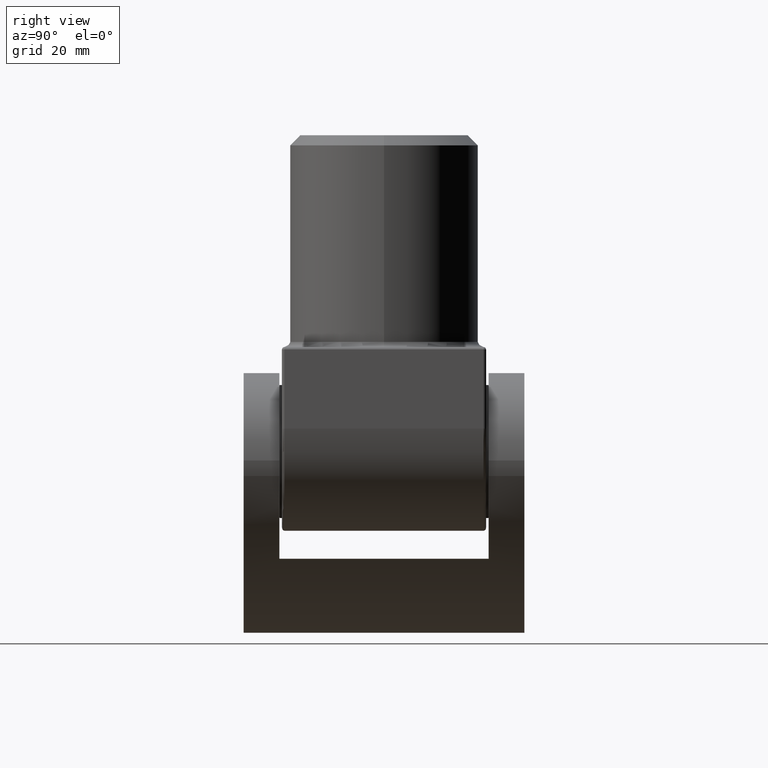
[diagram: clean part render]
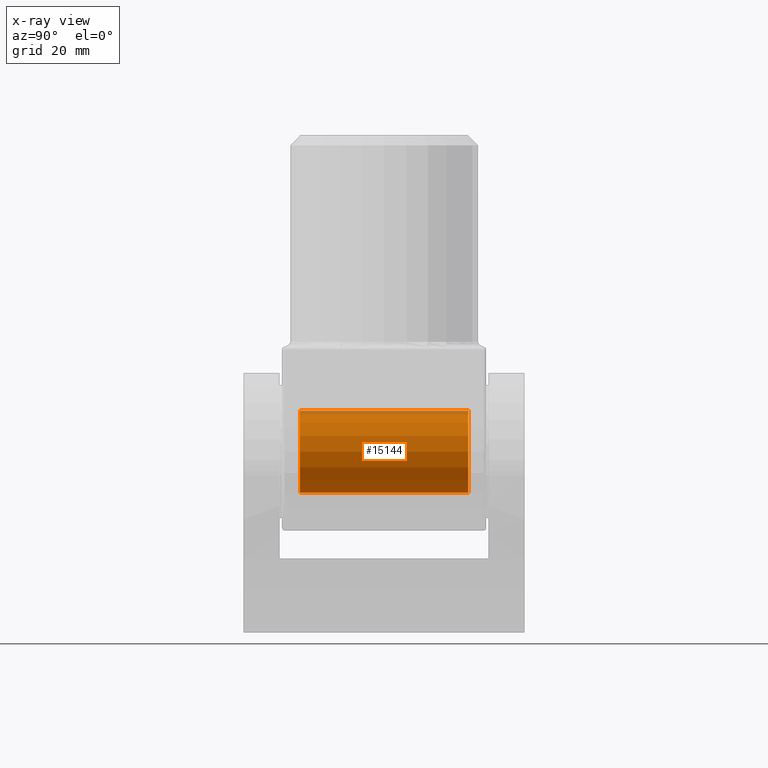
[diagram: x-ray — body ghosted, one internal face saturated and labeled with its STEP entity id]
A machine part, right view, then the same camera in x-ray: the body is ghosted and one INTERNAL B-rep face — a face not visible from any outside direction — is saturated and labeled: STEP entity #15144.
In plain terms, the highlighted cylindrical surface (partial cylindrical patch) has radius 8 mm, axis along (-0, -1, -0).
Its self-contained STEP definition (entity closure, byte-faithful):
#126 = CIRCLE ( 'NONE', #4791, 8.000000000000000000 ) ;
#617 = EDGE_CURVE ( 'NONE', #20256, #3035, #11719, .T. ) ;
#1093 = DIRECTION ( 'NONE',  ( 0.000000000000000000, 0.000000000000000000, -1.000000000000000000 ) ) ;
#1949 = DIRECTION ( 'NONE',  ( 0.000000000000000000, 0.000000000000000000, -1.000000000000000000 ) ) ;
#3035 = VERTEX_POINT ( 'NONE', #19538 ) ;
#3163 = EDGE_LOOP ( 'NONE', ( #11549, #15423, #16409, #3598 ) ) ;
#3598 = ORIENTED_EDGE ( 'NONE', *, *, #617, .F. ) ;
#4352 = CARTESIAN_POINT ( 'NONE',  ( 0.000000000000000000, 16.50000000000000000, -8.000000000000000000 ) ) ;
#4480 = CYLINDRICAL_SURFACE ( 'NONE', #9715, 8.000000000000001776 ) ;
#4791 = AXIS2_PLACEMENT_3D ( 'NONE', #20689, #18682, #1093 ) ;
#4800 = FACE_OUTER_BOUND ( 'NONE', #3163, .T. ) ;
#5022 = DIRECTION ( 'NONE',  ( -0.000000000000000000, -1.000000000000000000, -0.000000000000000000 ) ) ;
#5030 = DIRECTION ( 'NONE',  ( -0.000000000000000000, -1.000000000000000000, -0.000000000000000000 ) ) ;
#5701 = DIRECTION ( 'NONE',  ( -0.000000000000000000, -1.000000000000000000, -0.000000000000000000 ) ) ;
#6836 = EDGE_CURVE ( 'NONE', #11589, #24358, #12871, .T. ) ;
#7112 = EDGE_CURVE ( 'NONE', #20256, #11589, #11667, .T. ) ;
#8349 = VECTOR ( 'NONE', #5022, 1000.000000000000000 ) ;
#9302 = AXIS2_PLACEMENT_3D ( 'NONE', #13540, #5701, #1949 ) ;
#9715 = AXIS2_PLACEMENT_3D ( 'NONE', #22521, #11109, #11024 ) ;
#11024 = DIRECTION ( 'NONE',  ( 0.000000000000000000, 0.000000000000000000, -1.000000000000000000 ) ) ;
#11109 = DIRECTION ( 'NONE',  ( -0.000000000000000000, -1.000000000000000000, -0.000000000000000000 ) ) ;
#11366 = CARTESIAN_POINT ( 'NONE',  ( 9.797174393178827630E-16, 16.50000000000000000, 8.000000000000000000 ) ) ;
#11549 = ORIENTED_EDGE ( 'NONE', *, *, #7112, .T. ) ;
#11589 = VERTEX_POINT ( 'NONE', #11366 ) ;
#11667 = CIRCLE ( 'NONE', #9302, 8.000000000000000000 ) ;
#11719 = LINE ( 'NONE', #12948, #14137 ) ;
#12871 = LINE ( 'NONE', #20461, #8349 ) ;
#12948 = CARTESIAN_POINT ( 'NONE',  ( 0.000000000000000000, 0.000000000000000000, -8.000000000000001776 ) ) ;
#13540 = CARTESIAN_POINT ( 'NONE',  ( 0.000000000000000000, 16.50000000000000000, 0.000000000000000000 ) ) ;
#14137 = VECTOR ( 'NONE', #5030, 1000.000000000000000 ) ;
#14835 = CARTESIAN_POINT ( 'NONE',  ( 9.797174393178827630E-16, -16.50000000000000000, 8.000000000000000000 ) ) ;
#15144 = ADVANCED_FACE ( 'NONE', ( #4800 ), #4480, .T. ) ;
#15423 = ORIENTED_EDGE ( 'NONE', *, *, #6836, .T. ) ;
#16409 = ORIENTED_EDGE ( 'NONE', *, *, #23755, .F. ) ;
#18682 = DIRECTION ( 'NONE',  ( 0.000000000000000000, -1.000000000000000000, 0.000000000000000000 ) ) ;
#19538 = CARTESIAN_POINT ( 'NONE',  ( 0.000000000000000000, -16.50000000000000000, -8.000000000000000000 ) ) ;
#20256 = VERTEX_POINT ( 'NONE', #4352 ) ;
#20461 = CARTESIAN_POINT ( 'NONE',  ( 9.797174393178827630E-16, 0.000000000000000000, 8.000000000000001776 ) ) ;
#20689 = CARTESIAN_POINT ( 'NONE',  ( 0.000000000000000000, -16.50000000000000000, 0.000000000000000000 ) ) ;
#22521 = CARTESIAN_POINT ( 'NONE',  ( 0.000000000000000000, 0.000000000000000000, 0.000000000000000000 ) ) ;
#23755 = EDGE_CURVE ( 'NONE', #3035, #24358, #126, .T. ) ;
#24358 = VERTEX_POINT ( 'NONE', #14835 ) ;